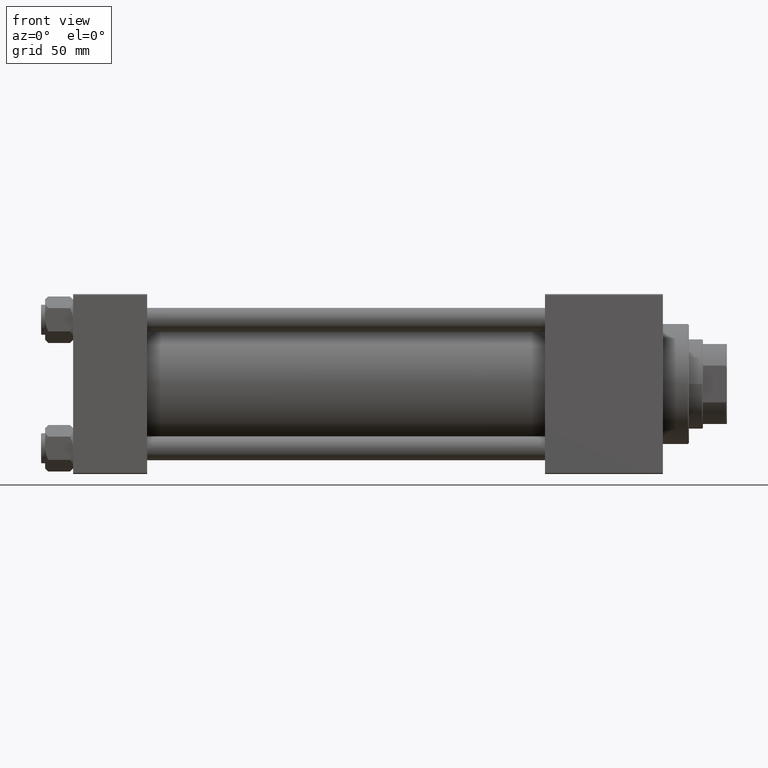
[diagram: clean part render]
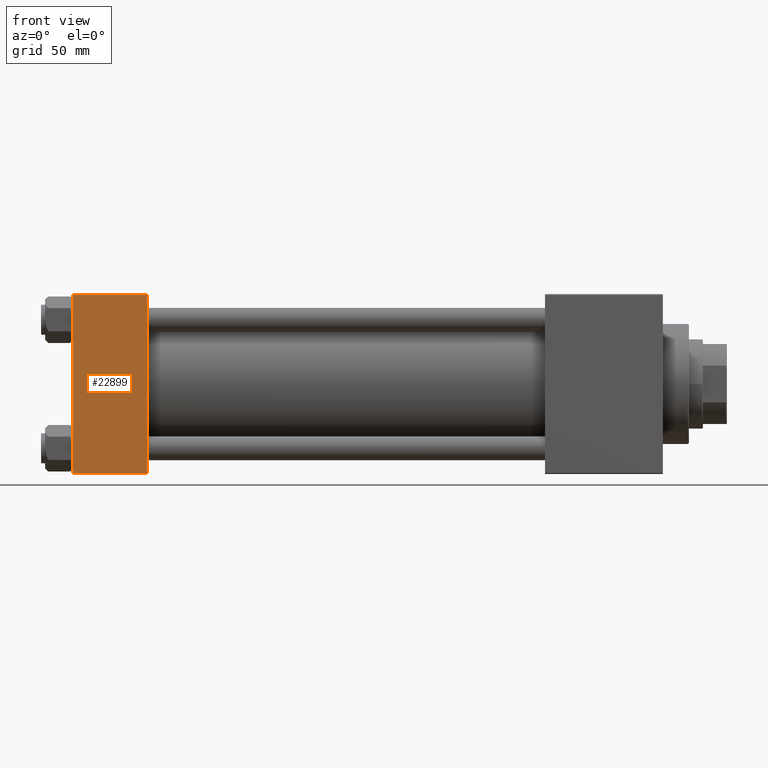
[diagram: same view with one face highlighted and labeled with its STEP entity id]
A machine part, front view. The second image highlights one B-rep face of the part: STEP entity #22899.
In plain terms, the highlighted planar face has unit normal (0, 1, 0).
Its self-contained STEP definition (entity closure, byte-faithful):
#2583 = CARTESIAN_POINT ( 'NONE',  ( 0.000000000000000000, -45.00000000000000711, 44.49999999999997158 ) ) ;
#3205 = VECTOR ( 'NONE', #22453, 1000.000000000000000 ) ;
#3478 = DIRECTION ( 'NONE',  ( -0.000000000000000000, 1.000000000000000000, 7.709882115452478166E-17 ) ) ;
#7660 = DIRECTION ( 'NONE',  ( 0.000000000000000000, 7.709882115452476934E-17, -1.000000000000000000 ) ) ;
#8047 = ORIENTED_EDGE ( 'NONE', *, *, #32625, .T. ) ;
#9137 = VERTEX_POINT ( 'NONE', #23613 ) ;
#9161 = AXIS2_PLACEMENT_3D ( 'NONE', #22977, #3478, #49109 ) ;
#9453 = CARTESIAN_POINT ( 'NONE',  ( 37.00000000000000000, -45.00000000000000711, 44.49999999999997158 ) ) ;
#9956 = DIRECTION ( 'NONE',  ( -1.000000000000000000, 0.000000000000000000, 0.000000000000000000 ) ) ;
#12460 = VECTOR ( 'NONE', #41166, 1000.000000000000000 ) ;
#12856 = ORIENTED_EDGE ( 'NONE', *, *, #40763, .F. ) ;
#15115 = ORIENTED_EDGE ( 'NONE', *, *, #24563, .T. ) ;
#18656 = CARTESIAN_POINT ( 'NONE',  ( 37.00000000000000000, -45.00000000000000000, -44.49999999999998579 ) ) ;
#21627 = EDGE_LOOP ( 'NONE', ( #15115, #36080, #12856, #8047 ) ) ;
#22453 = DIRECTION ( 'NONE',  ( 1.000000000000000000, 0.000000000000000000, 0.000000000000000000 ) ) ;
#22830 = CARTESIAN_POINT ( 'NONE',  ( 37.00000000000000000, -45.00000000000000711, 44.49999999999997158 ) ) ;
#22899 = ADVANCED_FACE ( 'NONE', ( #42489 ), #34134, .F. ) ;
#22977 = CARTESIAN_POINT ( 'NONE',  ( 37.00000000000000000, -45.00000000000000711, 45.00000000000000000 ) ) ;
#23613 = CARTESIAN_POINT ( 'NONE',  ( 37.00000000000000000, -45.00000000000000000, -44.49999999999995737 ) ) ;
#24563 = EDGE_CURVE ( 'NONE', #42028, #38623, #26218, .T. ) ;
#26218 = LINE ( 'NONE', #41427, #12460 ) ;
#26767 = CARTESIAN_POINT ( 'NONE',  ( 0.000000000000000000, -45.00000000000000000, -44.49999999999995737 ) ) ;
#26913 = LINE ( 'NONE', #42369, #32265 ) ;
#28005 = VERTEX_POINT ( 'NONE', #22830 ) ;
#28707 = LINE ( 'NONE', #9453, #49836 ) ;
#32265 = VECTOR ( 'NONE', #7660, 1000.000000000000000 ) ;
#32625 = EDGE_CURVE ( 'NONE', #28005, #42028, #28707, .T. ) ;
#34134 = PLANE ( 'NONE',  #9161 ) ;
#34600 = LINE ( 'NONE', #18656, #3205 ) ;
#36080 = ORIENTED_EDGE ( 'NONE', *, *, #41534, .T. ) ;
#38623 = VERTEX_POINT ( 'NONE', #26767 ) ;
#40763 = EDGE_CURVE ( 'NONE', #28005, #9137, #26913, .T. ) ;
#41166 = DIRECTION ( 'NONE',  ( 0.000000000000000000, 7.709882115452476934E-17, -1.000000000000000000 ) ) ;
#41427 = CARTESIAN_POINT ( 'NONE',  ( 0.000000000000000000, -45.00000000000000711, 45.00000000000000000 ) ) ;
#41534 = EDGE_CURVE ( 'NONE', #38623, #9137, #34600, .T. ) ;
#42028 = VERTEX_POINT ( 'NONE', #2583 ) ;
#42369 = CARTESIAN_POINT ( 'NONE',  ( 37.00000000000000000, -45.00000000000000711, 45.00000000000000000 ) ) ;
#42489 = FACE_OUTER_BOUND ( 'NONE', #21627, .T. ) ;
#49109 = DIRECTION ( 'NONE',  ( 0.000000000000000000, -7.709882115452478166E-17, 1.000000000000000000 ) ) ;
#49836 = VECTOR ( 'NONE', #9956, 1000.000000000000000 ) ;